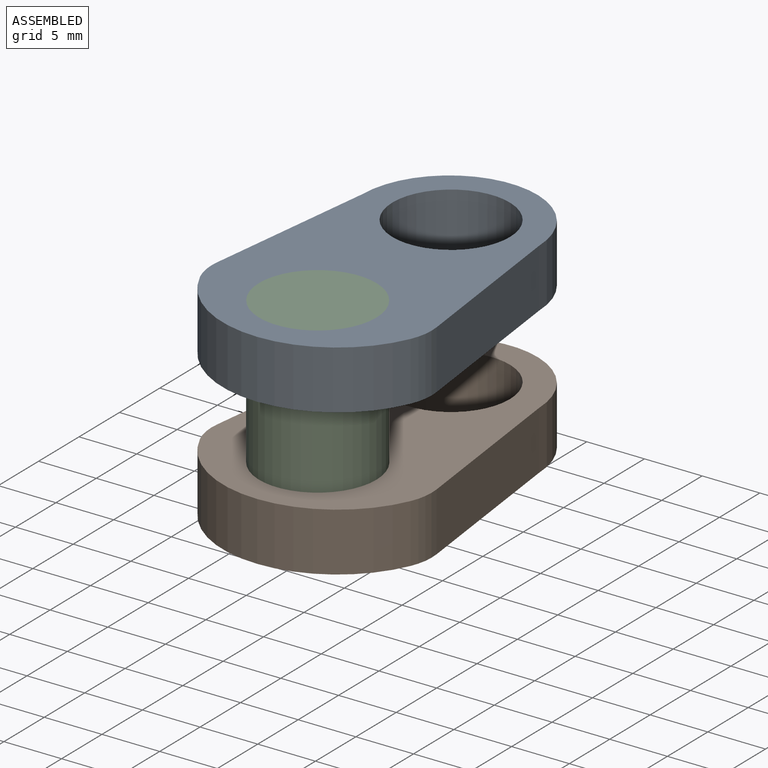
[diagram: assembled view]
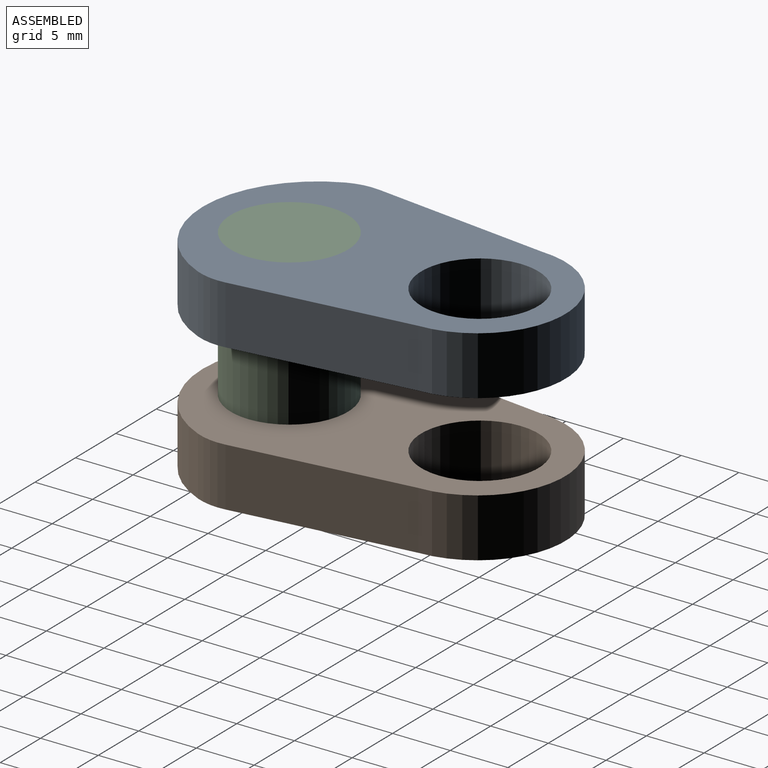
[diagram: assembled view, second angle]
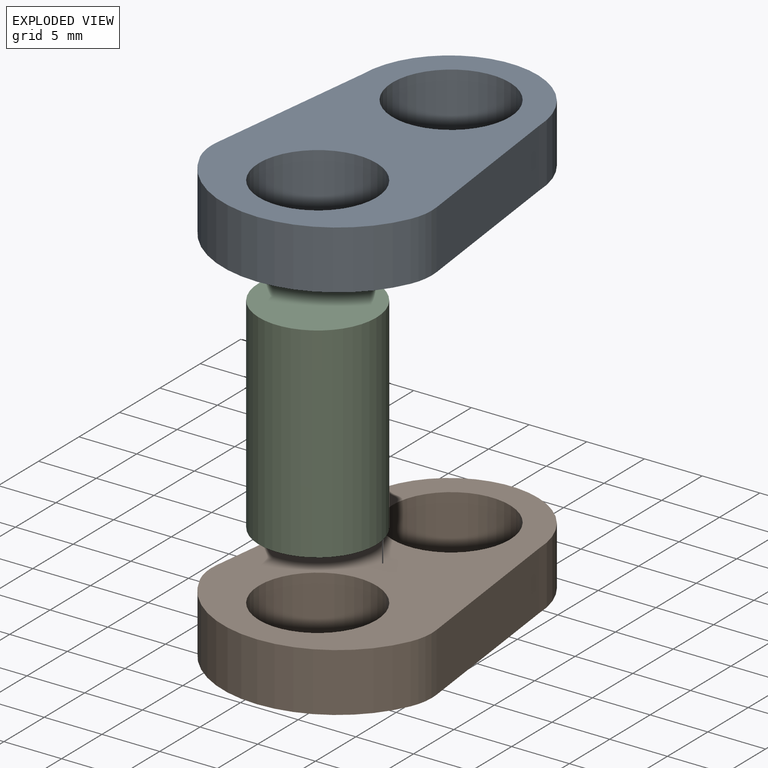
[diagram: exploded view]
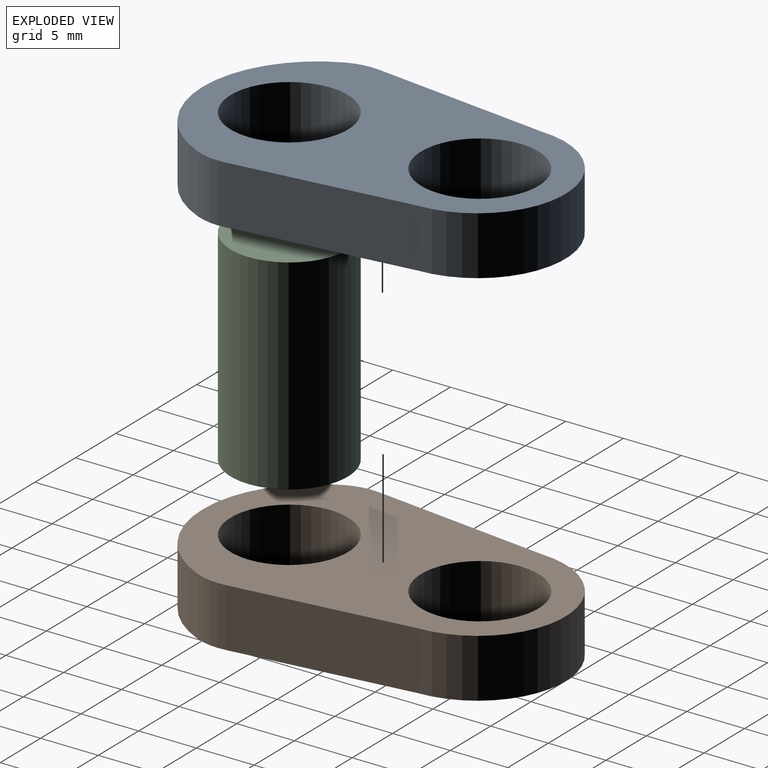
[diagram: exploded view, second angle]
ASSEMBLY  parts=3 mates=2
PART A: 10 faces, bbox 19.1x31.4x5.1 mm
  f0: cylinder r=7.62mm len=15.24mm, axis (0,0,-1), area 119.6mm2, adj f1,f5,f6,f7
  f1: plane 15.39x5.08mm, normal (-0.99,0.12,0), area 78.7mm2, adj f0,f6,f7,f8
  f2: cylinder r=9.96mm len=18.25mm, axis (0,0,-1), area 117.3mm2, adj f6,f7,f8,f9
  f3: cylinder r=5.08mm len=10.16mm, axis (0,0,-1), area 162.1mm2, adj f6,f7
  f4: cylinder r=5.08mm len=10.16mm, axis (0,0,-1), area 162.1mm2, adj f6,f7
  f5: plane 15.39x5.08mm, normal (0.99,0.12,0), area 78.7mm2, adj f0,f6,f7,f9
  f6: plane 31.43x19.1mm, normal (0,0,1), area 318.3mm2, adj f0,f1,f2,f3,f4,f5,f8,f9
  f7: plane 31.43x19.1mm, normal (0,0,-1), area 318.3mm2, adj f0,f1,f2,f3,f4,f5,f8,f9
  f8: cylinder r=5.08mm len=5.08mm, axis (0,0,-1), area 13.8mm2, adj f1,f2,f6,f7
  f9: cylinder r=5.08mm len=5.08mm, axis (0,0,-1), area 13.8mm2, adj f2,f5,f6,f7
PART B: same geometry as A
PART C: 3 faces, bbox 10.2x10.2x17.8 mm
  f0: cylinder r=5.08mm len=17.78mm, axis (0,0,-1), area 567.5mm2, adj f1,f2
  f1: plane 10.16x10.16mm, normal (0,0,1), area 81.1mm2, adj f0
  f2: plane 10.16x10.16mm, normal (0,0,-1), area 81.1mm2, adj f0
PLACE A t=(16.88,-6.62,-2.32)mm
PLACE B rot(axis=(0,1,0),180deg) t=(16.88,-6.62,-9.94)mm
PLACE C t=(16.88,-23.13,-15.02)mm
MATE fastened C.f0 <-> A.f4  axis (0,0,1) through (16.88,-23.13,2.76)mm
MATE fastened B.f4 <-> C.f0  axis (0,0,1) through (16.88,-23.13,-15.02)mm
